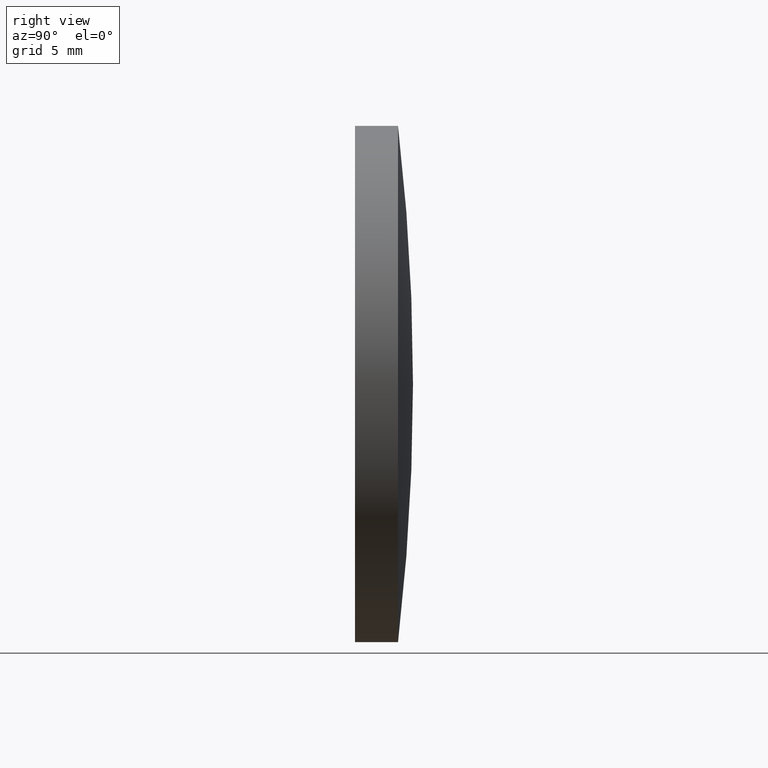
[diagram: clean part render]
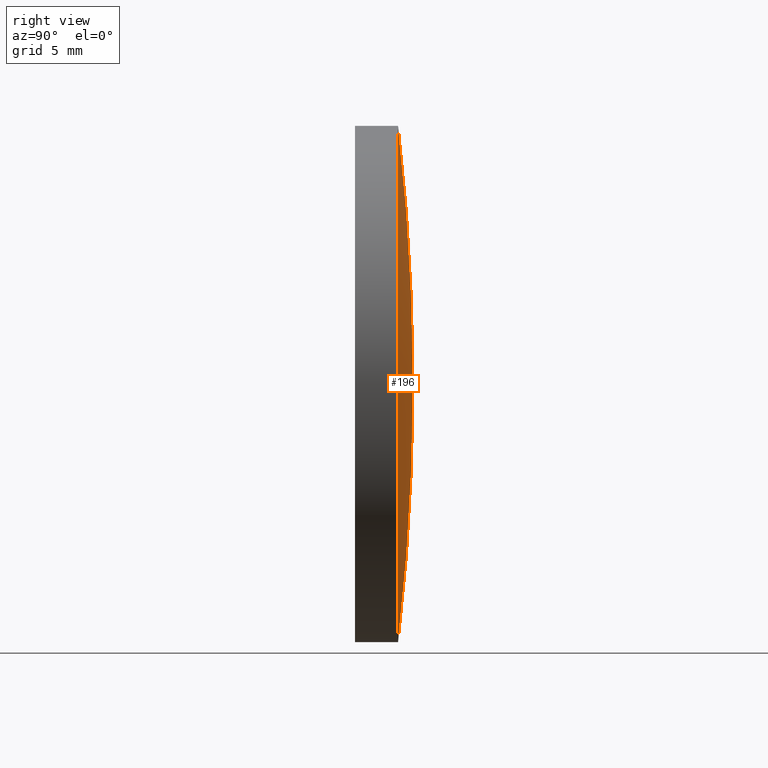
[diagram: same view with one face highlighted and labeled with its STEP entity id]
A machine part, right view. The second image highlights one B-rep face of the part: STEP entity #196.
In plain terms, the highlighted toroidal blend (fillet) surface has major radius 0.0293 mm and minor (blend) radius 129.24 mm.
Its self-contained STEP definition (entity closure, byte-faithful):
#14 = CIRCLE ( 'NONE', #91, 129.2400000000000375 ) ;
#18 = TOROIDAL_SURFACE ( 'NONE', #176, 0.02931019276951850328, 129.2400000000000375 ) ;
#33 = CARTESIAN_POINT ( 'NONE',  ( 0.000000000000000000, 2.499999999999998224, 0.000000000000000000 ) ) ;
#34 = ORIENTED_EDGE ( 'NONE', *, *, #179, .T. ) ;
#41 = VERTEX_POINT ( 'NONE', #195 ) ;
#47 = DIRECTION ( 'NONE',  ( -0.000000000000000000, 1.000000000000000000, -0.000000000000000000 ) ) ;
#49 = EDGE_LOOP ( 'NONE', ( #118, #34, #166 ) ) ;
#50 = DIRECTION ( 'NONE',  ( 1.000000000000000000, 0.000000000000000000, 1.224646799147353207E-16 ) ) ;
#59 = CARTESIAN_POINT ( 'NONE',  ( 0.000000000000000000, 3.370000000000000107, 0.000000000000000000 ) ) ;
#63 = CARTESIAN_POINT ( 'NONE',  ( 1.836970198721026039E-15, 2.500000000000000444, -14.99999999999996980 ) ) ;
#70 = VERTEX_POINT ( 'NONE', #59 ) ;
#78 = CIRCLE ( 'NONE', #102, 129.2400000000000375 ) ;
#85 = FACE_OUTER_BOUND ( 'NONE', #49, .T. ) ;
#91 = AXIS2_PLACEMENT_3D ( 'NONE', #127, #158, #143 ) ;
#99 = CIRCLE ( 'NONE', #154, 15.00000000000000000 ) ;
#102 = AXIS2_PLACEMENT_3D ( 'NONE', #193, #50, #163 ) ;
#115 = DIRECTION ( 'NONE',  ( 0.000000000000000000, 0.000000000000000000, 1.000000000000000000 ) ) ;
#118 = ORIENTED_EDGE ( 'NONE', *, *, #121, .T. ) ;
#121 = EDGE_CURVE ( 'NONE', #41, #177, #99, .T. ) ;
#127 = CARTESIAN_POINT ( 'NONE',  ( 0.000000000000000000, -125.8699966763873448, 0.02931019276951850328 ) ) ;
#140 = EDGE_CURVE ( 'NONE', #41, #70, #14, .T. ) ;
#143 = DIRECTION ( 'NONE',  ( 0.000000000000000000, 0.000000000000000000, 1.000000000000000000 ) ) ;
#146 = DIRECTION ( 'NONE',  ( -0.000000000000000000, 1.000000000000000000, -0.000000000000000000 ) ) ;
#154 = AXIS2_PLACEMENT_3D ( 'NONE', #33, #47, #156 ) ;
#156 = DIRECTION ( 'NONE',  ( 0.000000000000000000, 0.000000000000000000, 1.000000000000000000 ) ) ;
#158 = DIRECTION ( 'NONE',  ( -1.000000000000000000, 0.000000000000000000, 0.000000000000000000 ) ) ;
#163 = DIRECTION ( 'NONE',  ( 1.224646799147353454E-16, 0.000000000000000000, -1.000000000000000000 ) ) ;
#166 = ORIENTED_EDGE ( 'NONE', *, *, #140, .F. ) ;
#176 = AXIS2_PLACEMENT_3D ( 'NONE', #198, #146, #115 ) ;
#177 = VERTEX_POINT ( 'NONE', #63 ) ;
#179 = EDGE_CURVE ( 'NONE', #177, #70, #78, .T. ) ;
#193 = CARTESIAN_POINT ( 'NONE',  ( 3.589463375758273298E-18, -125.8699966763873448, -0.02931019276951850328 ) ) ;
#195 = CARTESIAN_POINT ( 'NONE',  ( 0.000000000000000000, 2.500000000000000444, 14.99999999999996980 ) ) ;
#196 = ADVANCED_FACE ( 'NONE', ( #85 ), #18, .T. ) ;
#198 = CARTESIAN_POINT ( 'NONE',  ( 0.000000000000000000, -125.8699966763873448, 0.000000000000000000 ) ) ;